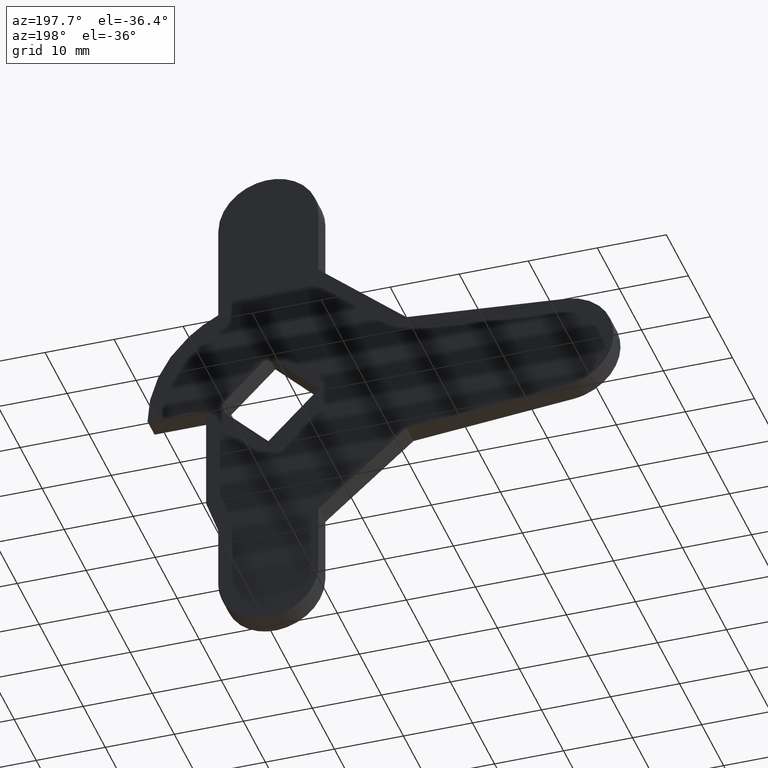
[diagram: clean part render]
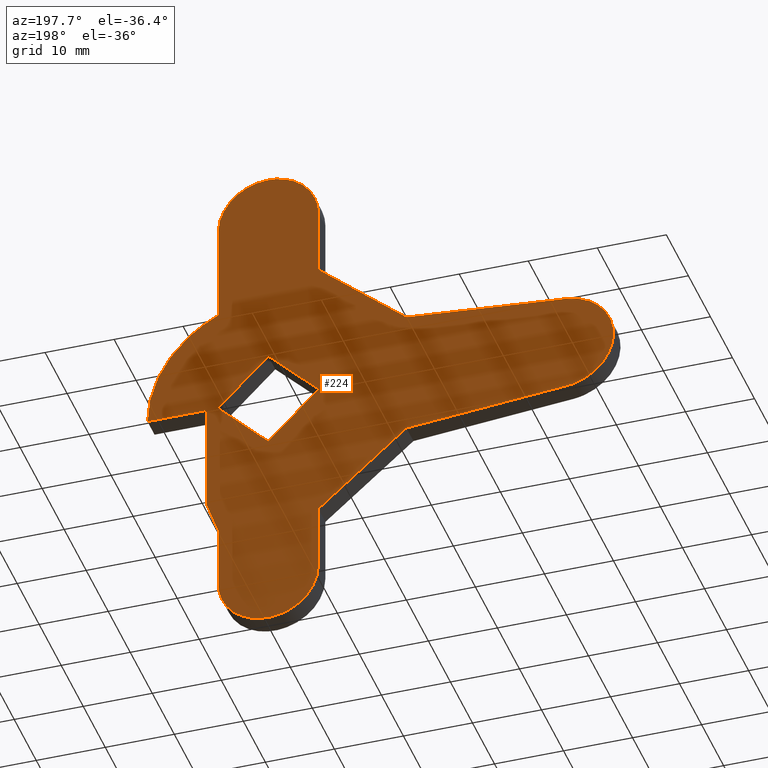
[diagram: same view with one face highlighted and labeled with its STEP entity id]
A machine part, auxiliary view. The second image highlights one B-rep face of the part: STEP entity #224.
In plain terms, the highlighted face is a freeform B-spline surface patch.
Its self-contained STEP definition (entity closure, byte-faithful):
#44=CARTESIAN_POINT('',(-53.371669325223742,0.0,41.246249854635423));
#45=CARTESIAN_POINT('',(20.871628794602639,0.0,41.246249854635423));
#46=CARTESIAN_POINT('',(-53.371669325223742,0.0,-41.246251866292177));
#47=CARTESIAN_POINT('',(20.871628794602639,0.0,-41.246251866292177));
#48=B_SPLINE_SURFACE_WITH_KNOTS('',1,1,((#44,#46),(#45,#47)),.UNSPECIFIED.,.F.,.F.,.U.,(2,2),(2,2),(0.0,74.243298119826378),(0.0,82.492501720927606),.UNSPECIFIED.);
#49=CARTESIAN_POINT('',(-20.0,0.0,9.500000000000000));
#50=VERTEX_POINT('',#49);
#51=CARTESIAN_POINT('',(-43.154600000000002,0.0,7.471399999999999));
#52=VERTEX_POINT('',#51);
#53=CARTESIAN_POINT('',(-20.0,0.0,9.500000000000000));
#54=CARTESIAN_POINT('',(-43.154600000000002,0.0,7.471399999999999));
#55=QUASI_UNIFORM_CURVE('',1,(#53,#54),.UNSPECIFIED.,.F.,.U.);
#56=EDGE_CURVE('',#50,#52,#55,.T.);
#57=ORIENTED_EDGE('',*,*,#56,.F.);
#58=CARTESIAN_POINT('',(-7.250000000000100,0.0,20.500000000000000));
#59=VERTEX_POINT('',#58);
#60=CARTESIAN_POINT('',(-7.250000000000100,0.0,20.500000000000000));
#61=CARTESIAN_POINT('',(-20.0,0.0,9.500000000000000));
#62=QUASI_UNIFORM_CURVE('',1,(#60,#61),.UNSPECIFIED.,.F.,.U.);
#63=EDGE_CURVE('',#59,#50,#62,.T.);
#64=ORIENTED_EDGE('',*,*,#63,.F.);
#65=CARTESIAN_POINT('',(-7.250000000000000,0.0,30.250000000000000));
#66=VERTEX_POINT('',#65);
#67=CARTESIAN_POINT('',(-7.250000000000000,0.0,30.250000000000000));
#68=CARTESIAN_POINT('',(-7.250000000000100,0.0,20.500000000000000));
#69=QUASI_UNIFORM_CURVE('',1,(#67,#68),.UNSPECIFIED.,.F.,.U.);
#70=EDGE_CURVE('',#66,#59,#69,.T.);
#71=ORIENTED_EDGE('',*,*,#70,.F.);
#72=CARTESIAN_POINT('',(7.250000000000000,0.0,30.250000000000000));
#73=VERTEX_POINT('',#72);
#74=CARTESIAN_POINT('',(7.250000000000000,0.0,30.250000000000000));
#75=CARTESIAN_POINT('',(7.250000000000000,0.0,37.499999999999993));
#76=CARTESIAN_POINT('',(0.0,0.0,37.500000000000000));
#77=CARTESIAN_POINT('',(-7.250000000000000,0.0,37.499999999999993));
#78=CARTESIAN_POINT('',(-7.250000000000000,0.0,30.250000000000000));
#86=(BOUNDED_CURVE()B_SPLINE_CURVE(2,(#74,#75,#76,#77,#78),.UNSPECIFIED.,.F.,.U.)B_SPLINE_CURVE_WITH_KNOTS((3,2,3),(0.0,0.500000000000000,1.0),.UNSPECIFIED.)CURVE()GEOMETRIC_REPRESENTATION_ITEM()RATIONAL_B_SPLINE_CURVE((1.0,0.707106781186548,1.0,0.707106781186548,1.0))REPRESENTATION_ITEM(''));
#87=EDGE_CURVE('',#73,#66,#86,.T.);
#88=ORIENTED_EDGE('',*,*,#87,.F.);
#89=CARTESIAN_POINT('',(7.250000000000000,0.0,15.927570436196500));
#90=VERTEX_POINT('',#89);
#91=CARTESIAN_POINT('',(7.250000000000000,0.0,15.927570436196500));
#92=CARTESIAN_POINT('',(7.250000000000000,0.0,30.250000000000000));
#93=QUASI_UNIFORM_CURVE('',1,(#91,#92),.UNSPECIFIED.,.F.,.U.);
#94=EDGE_CURVE('',#90,#73,#93,.T.);
#95=ORIENTED_EDGE('',*,*,#94,.F.);
#96=CARTESIAN_POINT('',(17.500000000000000,0.0,0.0));
#97=VERTEX_POINT('',#96);
#98=CARTESIAN_POINT('',(17.500000000000000,0.0,0.0));
#99=CARTESIAN_POINT('',(17.500000000000004,0.0,11.261918490239934));
#100=CARTESIAN_POINT('',(7.250000000000001,0.0,15.927570436196479));
#108=(BOUNDED_CURVE()B_SPLINE_CURVE(2,(#98,#99,#100),.UNSPECIFIED.,.F.,.U.)CURVE()GEOMETRIC_REPRESENTATION_ITEM()QUASI_UNIFORM_CURVE()RATIONAL_B_SPLINE_CURVE((1.0,0.840917865872082,1.0))REPRESENTATION_ITEM(''));
#109=EDGE_CURVE('',#97,#90,#108,.T.);
#110=ORIENTED_EDGE('',*,*,#109,.F.);
#111=CARTESIAN_POINT('',(8.999999999999799,0.0,0.0));
#112=VERTEX_POINT('',#111);
#113=CARTESIAN_POINT('',(8.999999999999799,0.0,0.0));
#114=CARTESIAN_POINT('',(17.500000000000000,0.0,0.0));
#115=QUASI_UNIFORM_CURVE('',1,(#113,#114),.UNSPECIFIED.,.F.,.U.);
#116=EDGE_CURVE('',#112,#97,#115,.T.);
#117=ORIENTED_EDGE('',*,*,#116,.F.);
#118=CARTESIAN_POINT('',(8.999999999999799,0.0,-16.0));
#119=VERTEX_POINT('',#118);
#120=CARTESIAN_POINT('',(8.999999999999799,0.0,-16.0));
#121=CARTESIAN_POINT('',(8.999999999999799,0.0,0.0));
#122=QUASI_UNIFORM_CURVE('',1,(#120,#121),.UNSPECIFIED.,.F.,.U.);
#123=EDGE_CURVE('',#119,#112,#122,.T.);
#124=ORIENTED_EDGE('',*,*,#123,.F.);
#125=CARTESIAN_POINT('',(7.250000000000000,0.0,-21.0));
#126=VERTEX_POINT('',#125);
#127=CARTESIAN_POINT('',(7.250000000000000,0.0,-21.0));
#128=CARTESIAN_POINT('',(8.999999999999799,0.0,-16.0));
#129=QUASI_UNIFORM_CURVE('',1,(#127,#128),.UNSPECIFIED.,.F.,.U.);
#130=EDGE_CURVE('',#126,#119,#129,.T.);
#131=ORIENTED_EDGE('',*,*,#130,.F.);
#132=CARTESIAN_POINT('',(7.250000000000000,0.0,-30.250000000000000));
#133=VERTEX_POINT('',#132);
#134=CARTESIAN_POINT('',(7.250000000000000,0.0,-30.250000000000000));
#135=CARTESIAN_POINT('',(7.250000000000000,0.0,-21.0));
#136=QUASI_UNIFORM_CURVE('',1,(#134,#135),.UNSPECIFIED.,.F.,.U.);
#137=EDGE_CURVE('',#133,#126,#136,.T.);
#138=ORIENTED_EDGE('',*,*,#137,.F.);
#139=CARTESIAN_POINT('',(-7.250000000000100,0.0,-30.250000000000000));
#140=VERTEX_POINT('',#139);
#141=CARTESIAN_POINT('',(-7.250000000000000,0.0,-30.250000000000000));
#142=CARTESIAN_POINT('',(-7.250000000000000,0.0,-37.499999999999993));
#143=CARTESIAN_POINT('',(0.0,0.0,-37.500000000000000));
#144=CARTESIAN_POINT('',(7.250000000000000,0.0,-37.499999999999993));
#145=CARTESIAN_POINT('',(7.250000000000000,0.0,-30.250000000000000));
#153=(BOUNDED_CURVE()B_SPLINE_CURVE(2,(#141,#142,#143,#144,#145),.UNSPECIFIED.,.F.,.U.)B_SPLINE_CURVE_WITH_KNOTS((3,2,3),(0.0,0.500000000000000,1.0),.UNSPECIFIED.)CURVE()GEOMETRIC_REPRESENTATION_ITEM()RATIONAL_B_SPLINE_CURVE((1.0,0.707106781186548,1.0,0.707106781186548,1.0))REPRESENTATION_ITEM(''));
#154=EDGE_CURVE('',#140,#133,#153,.T.);
#155=ORIENTED_EDGE('',*,*,#154,.F.);
#156=CARTESIAN_POINT('',(-7.250000000000100,0.0,-20.500000000000000));
#157=VERTEX_POINT('',#156);
#158=CARTESIAN_POINT('',(-7.250000000000100,0.0,-20.500000000000000));
#159=CARTESIAN_POINT('',(-7.250000000000100,0.0,-30.250000000000000));
#160=QUASI_UNIFORM_CURVE('',1,(#158,#159),.UNSPECIFIED.,.F.,.U.);
#161=EDGE_CURVE('',#157,#140,#160,.T.);
#162=ORIENTED_EDGE('',*,*,#161,.F.);
#163=CARTESIAN_POINT('',(-20.0,0.0,-9.500000000000000));
#164=VERTEX_POINT('',#163);
#165=CARTESIAN_POINT('',(-20.0,0.0,-9.500000000000000));
#166=CARTESIAN_POINT('',(-7.250000000000100,0.0,-20.500000000000000));
#167=QUASI_UNIFORM_CURVE('',1,(#165,#166),.UNSPECIFIED.,.F.,.U.);
#168=EDGE_CURVE('',#164,#157,#167,.T.);
#169=ORIENTED_EDGE('',*,*,#168,.F.);
#170=CARTESIAN_POINT('',(-43.154599881245602,0.0,-7.471400010404210));
#171=VERTEX_POINT('',#170);
#172=CARTESIAN_POINT('',(-43.154599881245602,0.0,-7.471400010404210));
#173=CARTESIAN_POINT('',(-20.0,0.0,-9.500000000000000));
#174=QUASI_UNIFORM_CURVE('',1,(#172,#173),.UNSPECIFIED.,.F.,.U.);
#175=EDGE_CURVE('',#171,#164,#174,.T.);
#176=ORIENTED_EDGE('',*,*,#175,.F.);
#177=CARTESIAN_POINT('',(-43.154600000000002,0.0,7.471399999999992));
#178=CARTESIAN_POINT('',(-50.000041792226938,0.0,6.871663307519408));
#179=CARTESIAN_POINT('',(-50.000041737616002,0.0,-0.000000059604654));
#180=CARTESIAN_POINT('',(-50.000041683005072,0.0,-6.871663426728710));
#181=CARTESIAN_POINT('',(-43.154599881245602,0.0,-7.471400010404211));
#189=(BOUNDED_CURVE()B_SPLINE_CURVE(2,(#177,#178,#179,#180,#181),.UNSPECIFIED.,.F.,.U.)B_SPLINE_CURVE_WITH_KNOTS((3,2,3),(0.0,0.500000000000000,1.0),.UNSPECIFIED.)CURVE()GEOMETRIC_REPRESENTATION_ITEM()RATIONAL_B_SPLINE_CURVE((1.0,0.737318376952824,1.0,0.737318376952824,1.0))REPRESENTATION_ITEM(''));
#190=EDGE_CURVE('',#52,#171,#189,.T.);
#191=ORIENTED_EDGE('',*,*,#190,.F.);
#192=EDGE_LOOP('',(#57,#64,#71,#88,#95,#110,#117,#124,#131,#138,#155,#162,#169,#176,#191));
#193=FACE_OUTER_BOUND('',#192,.T.);
#194=CARTESIAN_POINT('',(-7.283200000000000,0.0,0.0));
#195=VERTEX_POINT('',#194);
#196=CARTESIAN_POINT('',(0.0,0.0,-7.283200000000000));
#197=VERTEX_POINT('',#196);
#198=CARTESIAN_POINT('',(-7.283200000000000,0.0,0.0));
#199=CARTESIAN_POINT('',(0.0,0.0,-7.283200000000000));
#200=QUASI_UNIFORM_CURVE('',1,(#198,#199),.UNSPECIFIED.,.F.,.U.);
#201=EDGE_CURVE('',#195,#197,#200,.T.);
#202=ORIENTED_EDGE('',*,*,#201,.T.);
#203=CARTESIAN_POINT('',(7.283199999999890,0.0,0.0));
#204=VERTEX_POINT('',#203);
#205=CARTESIAN_POINT('',(0.0,0.0,-7.283200000000000));
#206=CARTESIAN_POINT('',(7.283199999999890,0.0,0.0));
#207=QUASI_UNIFORM_CURVE('',1,(#205,#206),.UNSPECIFIED.,.F.,.U.);
#208=EDGE_CURVE('',#197,#204,#207,.T.);
#209=ORIENTED_EDGE('',*,*,#208,.T.);
#210=CARTESIAN_POINT('',(0.0,0.0,7.283200000000000));
#211=VERTEX_POINT('',#210);
#212=CARTESIAN_POINT('',(7.283199999999890,0.0,0.0));
#213=CARTESIAN_POINT('',(0.0,0.0,7.283200000000000));
#214=QUASI_UNIFORM_CURVE('',1,(#212,#213),.UNSPECIFIED.,.F.,.U.);
#215=EDGE_CURVE('',#204,#211,#214,.T.);
#216=ORIENTED_EDGE('',*,*,#215,.T.);
#217=CARTESIAN_POINT('',(0.0,0.0,7.283200000000000));
#218=CARTESIAN_POINT('',(-7.283200000000000,0.0,0.0));
#219=QUASI_UNIFORM_CURVE('',1,(#217,#218),.UNSPECIFIED.,.F.,.U.);
#220=EDGE_CURVE('',#211,#195,#219,.T.);
#221=ORIENTED_EDGE('',*,*,#220,.T.);
#222=EDGE_LOOP('',(#202,#209,#216,#221));
#223=FACE_BOUND('',#222,.T.);
#224=ADVANCED_FACE('',(#193,#223),#48,.T.);